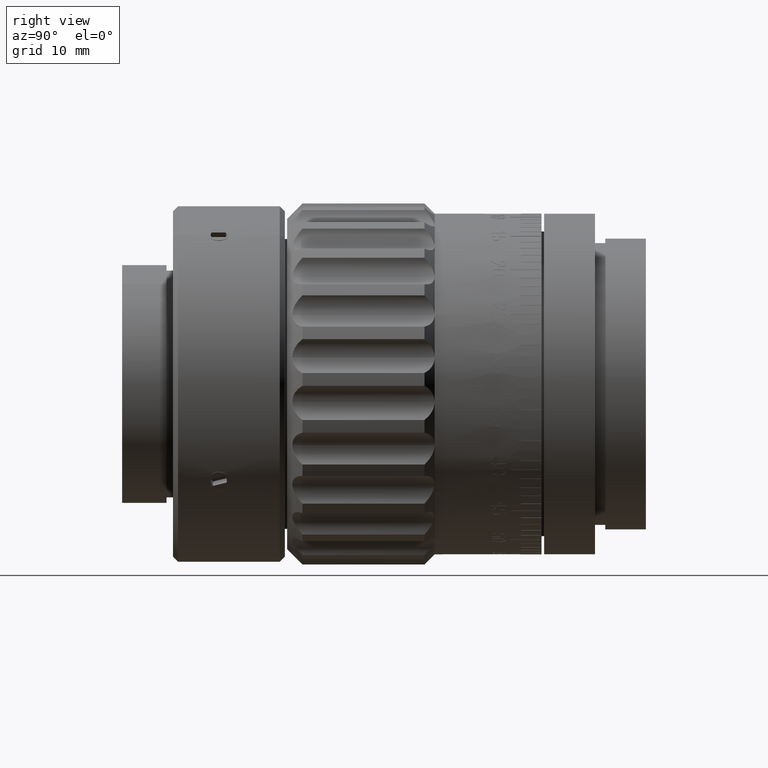
[diagram: clean part render]
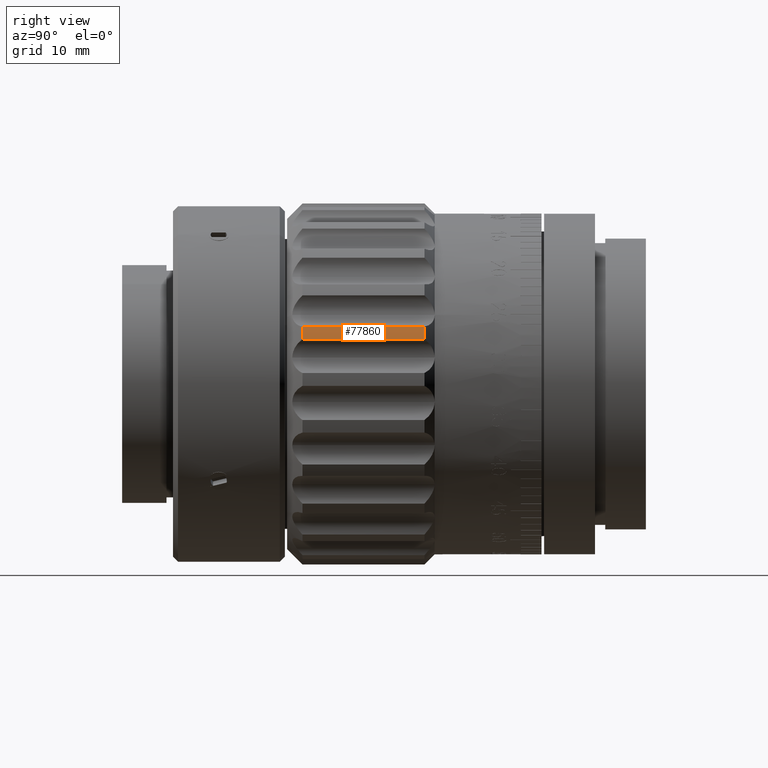
[diagram: same view with one face highlighted and labeled with its STEP entity id]
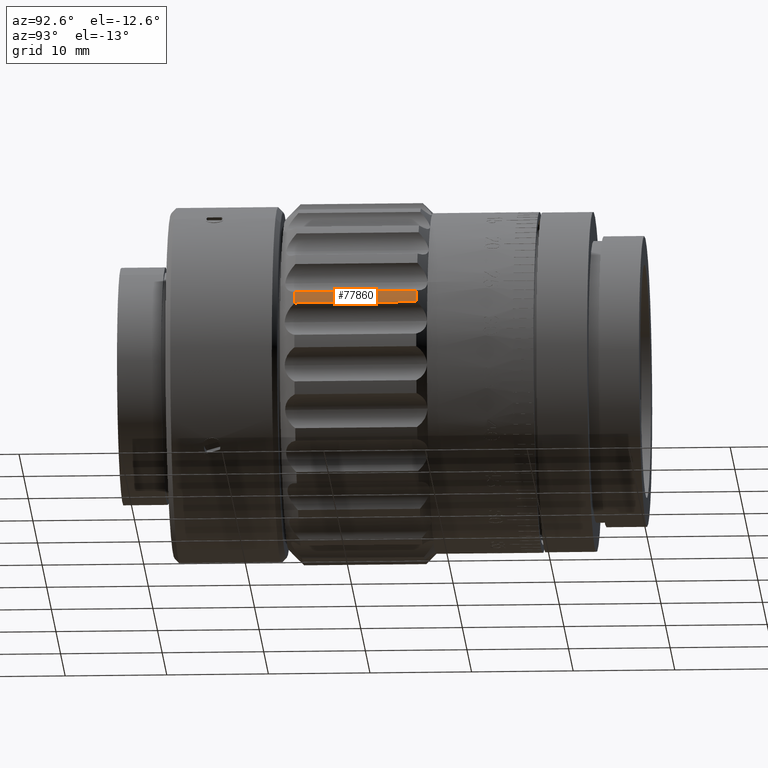
[diagram: same view with one face highlighted and labeled with its STEP entity id]
A machine part, right view. The second image highlights one B-rep face of the part: STEP entity #77860.
A second angle (auxiliary view) of the same face is appended — the face is thin or edge-on in the first view.
In plain terms, the highlighted cylindrical surface (partial cylindrical patch) has radius 17.75 mm, axis along (-0, -1, 0).
Its self-contained STEP definition (entity closure, byte-faithful):
#159 = DIRECTION ( 'NONE',  ( 0.0000000000000000000, 0.0000000000000000000, 1.000000000000000000 ) ) ;
#1236 = ORIENTED_EDGE ( 'NONE', *, *, #81084, .F. ) ;
#2942 = CARTESIAN_POINT ( 'NONE',  ( -2.947360573918626200, -15.71457821189758300, -17.50358722226133400 ) ) ;
#7107 = CARTESIAN_POINT ( 'NONE',  ( 0.0000000000000000000, -27.21457821189756700, 0.0000000000000000000 ) ) ;
#7589 = ORIENTED_EDGE ( 'NONE', *, *, #23735, .T. ) ;
#7702 = VECTOR ( 'NONE', #94061, 1000.000000000000000 ) ;
#13075 = FACE_OUTER_BOUND ( 'NONE', #93166, .T. ) ;
#15868 = CARTESIAN_POINT ( 'NONE',  ( -2.947360573918623500, -27.21457821189756700, -17.50358722226133100 ) ) ;
#15916 = DIRECTION ( 'NONE',  ( 0.0000000000000000000, 1.000000000000000000, 0.0000000000000000000 ) ) ;
#16160 = VERTEX_POINT ( 'NONE', #73503 ) ;
#23735 = EDGE_CURVE ( 'NONE', #16160, #47639, #25463, .T. ) ;
#23738 = AXIS2_PLACEMENT_3D ( 'NONE', #7107, #15916, #159 ) ;
#25463 = CIRCLE ( 'NONE', #32406, 17.75000000000000400 ) ;
#32406 = AXIS2_PLACEMENT_3D ( 'NONE', #102048, #36228, #69165 ) ;
#35120 = CARTESIAN_POINT ( 'NONE',  ( -1.683330033000074200, -15.21457821189761400, -17.67000000000000200 ) ) ;
#36228 = DIRECTION ( 'NONE',  ( -0.0000000000000000000, -1.000000000000000000, -0.0000000000000000000 ) ) ;
#37086 = EDGE_CURVE ( 'NONE', #61217, #47639, #56505, .T. ) ;
#40601 = CARTESIAN_POINT ( 'NONE',  ( -1.683330033000077100, -15.71457821189758300, -17.67000000000000200 ) ) ;
#42209 = EDGE_CURVE ( 'NONE', #61217, #59998, #97977, .T. ) ;
#43112 = DIRECTION ( 'NONE',  ( 0.0000000000000000000, 0.0000000000000000000, -1.000000000000000000 ) ) ;
#46708 = CARTESIAN_POINT ( 'NONE',  ( -1.683330033000077800, -27.21457821189756700, -17.67000000000000200 ) ) ;
#47639 = VERTEX_POINT ( 'NONE', #35120 ) ;
#56505 = LINE ( 'NONE', #40601, #91894 ) ;
#59998 = VERTEX_POINT ( 'NONE', #15868 ) ;
#61002 = CARTESIAN_POINT ( 'NONE',  ( 0.0000000000000000000, -13.71457821189758900, 0.0000000000000000000 ) ) ;
#61217 = VERTEX_POINT ( 'NONE', #46708 ) ;
#66566 = AXIS2_PLACEMENT_3D ( 'NONE', #61002, #93200, #43112 ) ;
#69165 = DIRECTION ( 'NONE',  ( 0.0000000000000000000, 0.0000000000000000000, -1.000000000000000000 ) ) ;
#73503 = CARTESIAN_POINT ( 'NONE',  ( -2.947360573918633700, -15.21457821189761400, -17.50358722226133100 ) ) ;
#74258 = DIRECTION ( 'NONE',  ( -0.0000000000000000000, 1.000000000000000000, -0.0000000000000000000 ) ) ;
#77860 = ADVANCED_FACE ( 'NONE', ( #13075 ), #90335, .T. ) ;
#78503 = LINE ( 'NONE', #2942, #7702 ) ;
#81084 = EDGE_CURVE ( 'NONE', #16160, #59998, #78503, .T. ) ;
#90335 = CYLINDRICAL_SURFACE ( 'NONE', #66566, 17.75000000000000400 ) ;
#91894 = VECTOR ( 'NONE', #74258, 1000.000000000000000 ) ;
#93166 = EDGE_LOOP ( 'NONE', ( #1236, #7589, #93607, #103127 ) ) ;
#93200 = DIRECTION ( 'NONE',  ( 0.0000000000000000000, -1.000000000000000000, 0.0000000000000000000 ) ) ;
#93607 = ORIENTED_EDGE ( 'NONE', *, *, #37086, .F. ) ;
#94061 = DIRECTION ( 'NONE',  ( 0.0000000000000000000, -1.000000000000000000, 0.0000000000000000000 ) ) ;
#97977 = CIRCLE ( 'NONE', #23738, 17.75000000000000400 ) ;
#102048 = CARTESIAN_POINT ( 'NONE',  ( 0.0000000000000000000, -15.21457821189761400, 0.0000000000000000000 ) ) ;
#103127 = ORIENTED_EDGE ( 'NONE', *, *, #42209, .T. ) ;